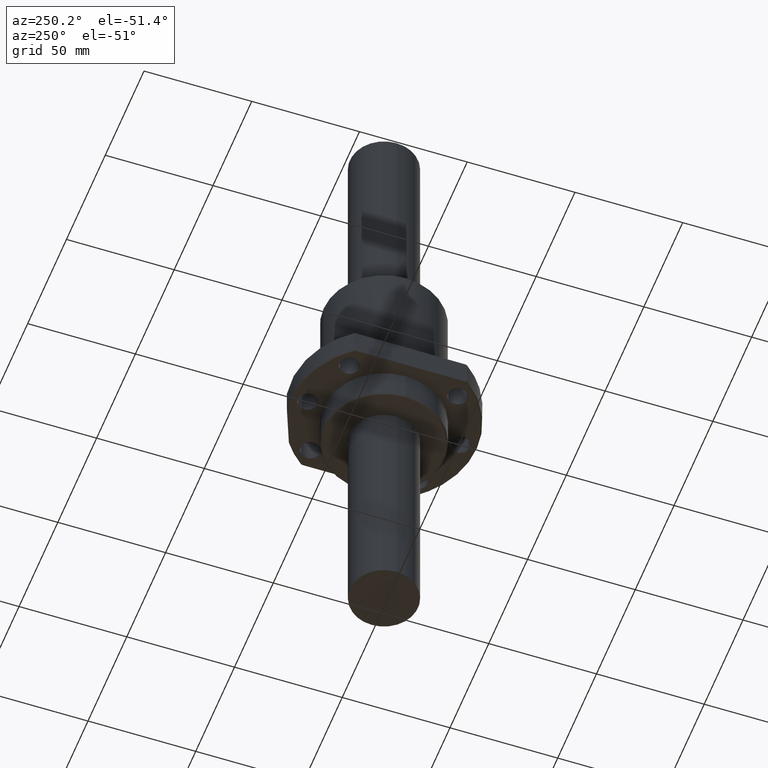
[diagram: clean part render]
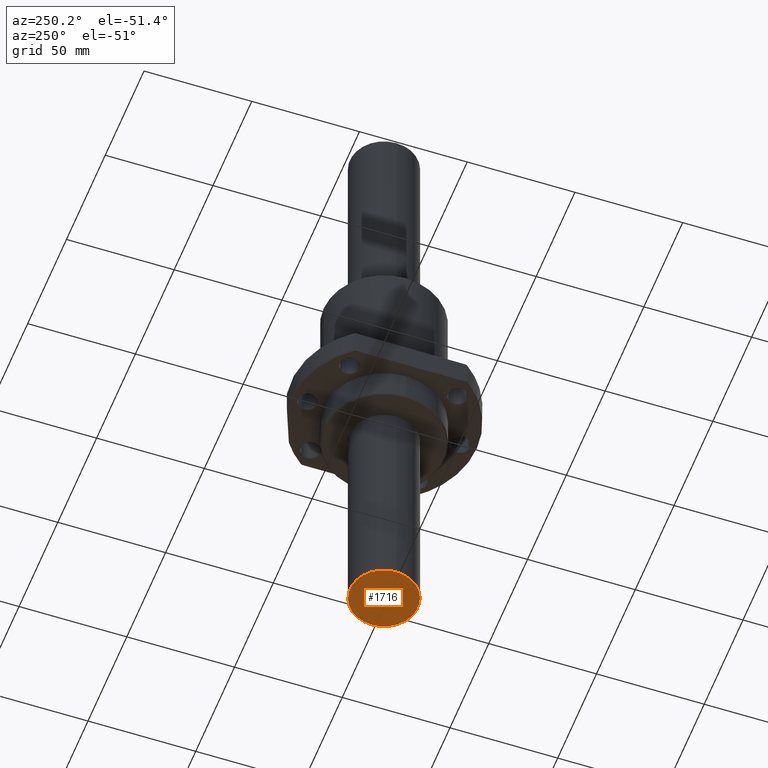
[diagram: same view with one face highlighted and labeled with its STEP entity id]
A machine part, auxiliary view. The second image highlights one B-rep face of the part: STEP entity #1716.
In plain terms, the highlighted planar face has unit normal (0, 0, -1).
Its self-contained STEP definition (entity closure, byte-faithful):
#13 = CARTESIAN_POINT ( 'NONE',  ( 15.80000000000000100, 0.0000000000000000000, -300.0000000000000000 ) ) ;
#36 = CIRCLE ( 'NONE', #1096, 15.80000000000000100 ) ;
#88 = EDGE_CURVE ( 'NONE', #1702, #545, #36, .T. ) ;
#124 = ORIENTED_EDGE ( 'NONE', *, *, #1917, .T. ) ;
#213 = EDGE_LOOP ( 'NONE', ( #1061, #124 ) ) ;
#323 = DIRECTION ( 'NONE',  ( 1.000000000000000000, 0.0000000000000000000, 0.0000000000000000000 ) ) ;
#325 = AXIS2_PLACEMENT_3D ( 'NONE', #1955, #1953, #1945 ) ;
#331 = DIRECTION ( 'NONE',  ( -0.0000000000000000000, 0.0000000000000000000, -1.000000000000000000 ) ) ;
#333 = CARTESIAN_POINT ( 'NONE',  ( 0.0000000000000000000, 0.0000000000000000000, -300.0000000000000000 ) ) ;
#545 = VERTEX_POINT ( 'NONE', #797 ) ;
#797 = CARTESIAN_POINT ( 'NONE',  ( -15.80000000000000100, 1.934941942652818000E-015, -300.0000000000000000 ) ) ;
#869 = FACE_OUTER_BOUND ( 'NONE', #213, .T. ) ;
#918 = CIRCLE ( 'NONE', #1733, 15.80000000000000100 ) ;
#1061 = ORIENTED_EDGE ( 'NONE', *, *, #88, .T. ) ;
#1096 = AXIS2_PLACEMENT_3D ( 'NONE', #333, #331, #323 ) ;
#1702 = VERTEX_POINT ( 'NONE', #13 ) ;
#1716 = ADVANCED_FACE ( 'NONE', ( #869 ), #1966, .T. ) ;
#1733 = AXIS2_PLACEMENT_3D ( 'NONE', #1796, #1776, #1767 ) ;
#1767 = DIRECTION ( 'NONE',  ( 1.000000000000000000, 0.0000000000000000000, 0.0000000000000000000 ) ) ;
#1776 = DIRECTION ( 'NONE',  ( -0.0000000000000000000, 0.0000000000000000000, -1.000000000000000000 ) ) ;
#1796 = CARTESIAN_POINT ( 'NONE',  ( 0.0000000000000000000, 0.0000000000000000000, -300.0000000000000000 ) ) ;
#1917 = EDGE_CURVE ( 'NONE', #545, #1702, #918, .T. ) ;
#1945 = DIRECTION ( 'NONE',  ( -1.000000000000000000, 0.0000000000000000000, 0.0000000000000000000 ) ) ;
#1953 = DIRECTION ( 'NONE',  ( 0.0000000000000000000, 0.0000000000000000000, -1.000000000000000000 ) ) ;
#1955 = CARTESIAN_POINT ( 'NONE',  ( 15.98960000000000300, -15.98960000000000300, -300.0000000000000000 ) ) ;
#1966 = PLANE ( 'NONE',  #325 ) ;